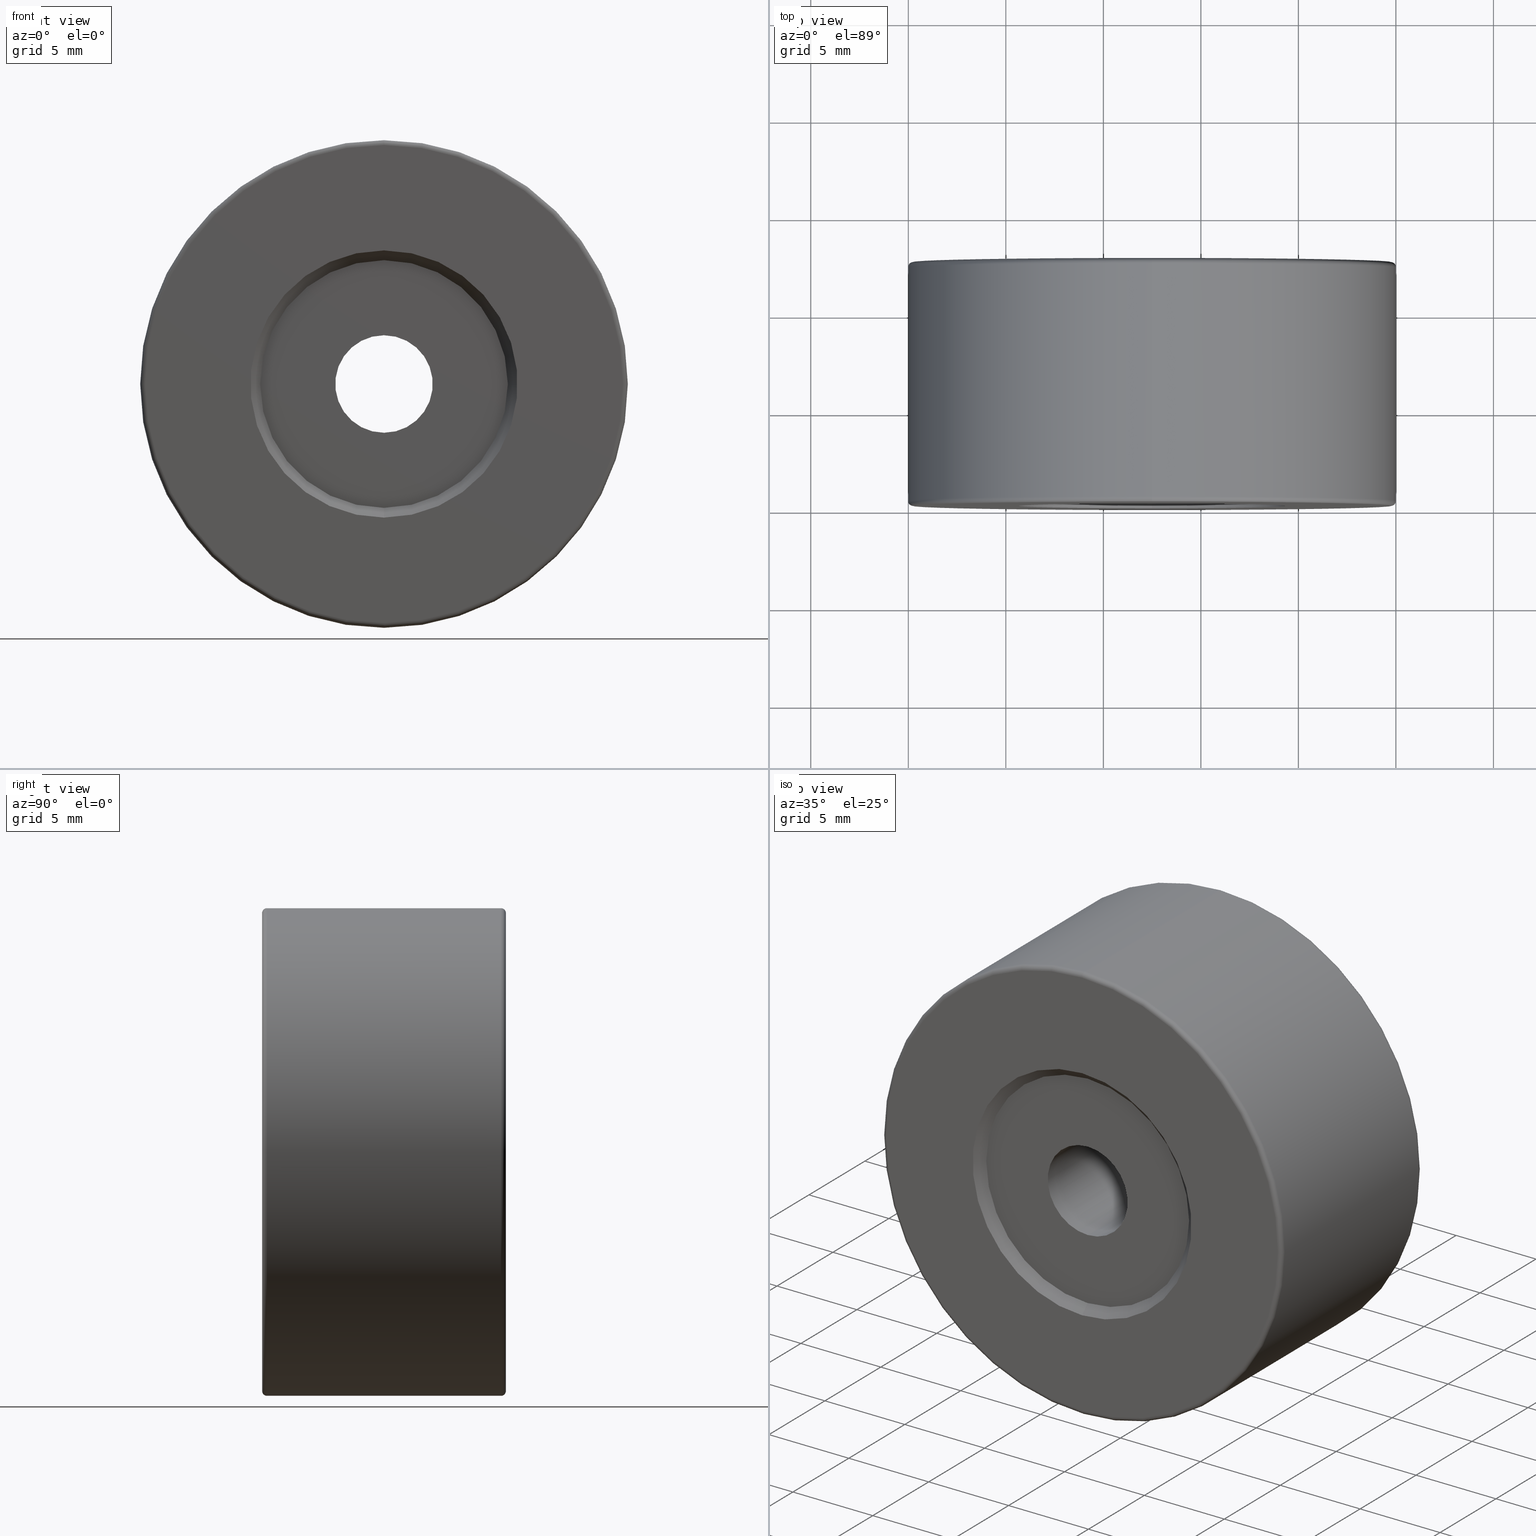
[diagram: canonical four-view strip — front | top / right | iso, engineering-drawing reading convention]
A machine part, canonical four-view strip (front | top / right | iso — engineering-drawing reading convention). The complete STEP part file that produces these views, byte-faithful:
ISO-10303-21;
HEADER;
FILE_DESCRIPTION (( 'STEP AP203' ),
    '1' );
FILE_NAME ('1.4.2.20_ZGH-25-12.5.STEP',
    '2022-04-14T00:07:34',
    ( '' ),
    ( '' ),
    'SwSTEP 2.0',
    'SolidWorks 2021',
    '' );
FILE_SCHEMA (( 'CONFIG_CONTROL_DESIGN' ));
ENDSEC;

DATA;
#1 = AXIS2_PLACEMENT_3D ( 'NONE', #95, #105, #456 ) ;
#2 = AXIS2_PLACEMENT_3D ( 'NONE', #569, #575, #212 ) ;
#3 = DIRECTION ( 'NONE',  ( -0.0000000000000000000, -1.000000000000000000, -0.0000000000000000000 ) ) ;
#4 = ORIENTED_EDGE ( 'NONE', *, *, #213, .T. ) ;
#5 = EDGE_CURVE ( 'NONE', #24, #240, #545, .T. ) ;
#6 = DIRECTION ( 'NONE',  ( -0.0000000000000000000, -1.000000000000000000, -0.0000000000000000000 ) ) ;
#7 = CARTESIAN_POINT ( 'NONE',  ( -22.50520183104453409, 7.148252184769388506, 43.64999999999999858 ) ) ;
#8 = APPROVAL_PERSON_ORGANIZATION ( #32, #435, #218 ) ;
#9 = FACE_OUTER_BOUND ( 'NONE', #497, .T. ) ;
#10 = LOCAL_TIME ( 8, 7, 34.00000000000000000, #392 ) ;
#11 = CARTESIAN_POINT ( 'NONE',  ( -22.50520183104453409, 7.148252184769377848, 50.00000000000000000 ) ) ;
#12 = CONICAL_SURFACE ( 'NONE', #77, 6.850000000000002309, 0.7853981633974491672 ) ;
#13 = EDGE_CURVE ( 'NONE', #424, #337, #422, .T. ) ;
#14 = DIRECTION ( 'NONE',  ( 0.0000000000000000000, 0.0000000000000000000, 1.000000000000000000 ) ) ;
#15 = EDGE_CURVE ( 'NONE', #195, #49, #157, .T. ) ;
#16 = CARTESIAN_POINT ( 'NONE',  ( -22.50520183104453409, -4.351747815230611494, 50.00000000000000000 ) ) ;
#17 = DIRECTION ( 'NONE',  ( 0.0000000000000000000, -0.0000000000000000000, 1.000000000000000000 ) ) ;
#18 = CC_DESIGN_PERSON_AND_ORGANIZATION_ASSIGNMENT ( #299, #172, ( #102 ) ) ;
#19 = FACE_OUTER_BOUND ( 'NONE', #245, .T. ) ;
#20 = CARTESIAN_POINT ( 'NONE',  ( 0.0000000000000000000, 0.0000000000000000000, 0.0000000000000000000 ) ) ;
#21 = ORIENTED_EDGE ( 'NONE', *, *, #31, .F. ) ;
#22 =( LENGTH_UNIT ( ) NAMED_UNIT ( * ) SI_UNIT ( .MILLI., .METRE. ) );
#23 = VERTEX_POINT ( 'NONE', #7 ) ;
#24 = VERTEX_POINT ( 'NONE', #537 ) ;
#25 = DIRECTION ( 'NONE',  ( 0.0000000000000000000, 0.0000000000000000000, 1.000000000000000000 ) ) ;
#26 = ORIENTED_EDGE ( 'NONE', *, *, #414, .F. ) ;
#27 = ORIENTED_EDGE ( 'NONE', *, *, #78, .T. ) ;
#28 = DIRECTION ( 'NONE',  ( 0.0000000000000000000, 0.0000000000000000000, -1.000000000000000000 ) ) ;
#29 = EDGE_LOOP ( 'NONE', ( #151, #294, #325, #26 ) ) ;
#30 = AXIS2_PLACEMENT_3D ( 'NONE', #469, #426, #376 ) ;
#31 = EDGE_CURVE ( 'NONE', #296, #424, #187, .T. ) ;
#32 = PERSON_AND_ORGANIZATION ( #271, #254 ) ;
#33 = ORIENTED_EDGE ( 'NONE', *, *, #97, .T. ) ;
#34 = DIRECTION ( 'NONE',  ( 0.0000000000000000000, 0.0000000000000000000, 1.000000000000000000 ) ) ;
#35 = ORIENTED_EDGE ( 'NONE', *, *, #159, .F. ) ;
#36 = PERSON_AND_ORGANIZATION_ROLE ( 'design_supplier' ) ;
#37 = AXIS2_PLACEMENT_3D ( 'NONE', #103, #460, #63 ) ;
#38 = COORDINATED_UNIVERSAL_TIME_OFFSET ( 8, 0, .AHEAD. ) ;
#39 = CARTESIAN_POINT ( 'NONE',  ( -22.50520183104453409, -4.851747815230612382, 56.85000000000000142 ) ) ;
#40 = EDGE_CURVE ( 'NONE', #120, #565, #305, .T. ) ;
#41 = DIRECTION ( 'NONE',  ( 0.0000000000000000000, 0.0000000000000000000, 1.000000000000000000 ) ) ;
#42 = VECTOR ( 'NONE', #3, 1000.000000000000000 ) ;
#43 = DIRECTION ( 'NONE',  ( -0.0000000000000000000, -1.000000000000000000, -0.0000000000000000000 ) ) ;
#44 = CARTESIAN_POINT ( 'NONE',  ( -22.50520183104453409, 2.658983710942815382, 50.00000000000000000 ) ) ;
#45 = CARTESIAN_POINT ( 'NONE',  ( -22.50520183104453409, 7.648252184769388506, 50.00000000000000000 ) ) ;
#46 = CARTESIAN_POINT ( 'NONE',  ( -22.50520183104453409, 7.148252184769388506, 48.35000000000000142 ) ) ;
#47 = CARTESIAN_POINT ( 'NONE',  ( -22.50520183104453409, 7.648252184769388506, 51.64999999999999858 ) ) ;
#48 = CARTESIAN_POINT ( 'NONE',  ( -22.50520183104453409, -4.851747815230612382, 43.14999999999999858 ) ) ;
#49 = VERTEX_POINT ( 'NONE', #356 ) ;
#50 = DIRECTION ( 'NONE',  ( 0.0000000000000000000, 0.0000000000000000000, 1.000000000000000000 ) ) ;
#51 = AXIS2_PLACEMENT_3D ( 'NONE', #94, #544, #185 ) ;
#52 = CIRCLE ( 'NONE', #455, 6.350000000000001421 ) ;
#53 = DIRECTION ( 'NONE',  ( 0.0000000000000000000, 0.0000000000000000000, 1.000000000000000000 ) ) ;
#54 = CIRCLE ( 'NONE', #178, 12.24999999999999645 ) ;
#55 = LINE ( 'NONE', #234, #504 ) ;
#56 = AXIS2_PLACEMENT_3D ( 'NONE', #135, #263, #50 ) ;
#57 = ADVANCED_FACE ( 'NONE', ( #450 ), #12, .F. ) ;
#58 = CC_DESIGN_PERSON_AND_ORGANIZATION_ASSIGNMENT ( #524, #36, ( #217 ) ) ;
#59 = CARTESIAN_POINT ( 'NONE',  ( -22.50520183104453409, -4.351747815230611494, 52.50000000000000000 ) ) ;
#60 = DIRECTION ( 'NONE',  ( 0.0000000000000000000, 1.000000000000000000, 0.0000000000000000000 ) ) ;
#61 = EDGE_LOOP ( 'NONE', ( #203, #289, #198, #118 ) ) ;
#62 = TOROIDAL_SURFACE ( 'NONE', #470, 12.25000000000000000, 0.2500000000000000000 ) ;
#63 = DIRECTION ( 'NONE',  ( 0.0000000000000000000, 0.0000000000000000000, 1.000000000000000000 ) ) ;
#64 = CARTESIAN_POINT ( 'NONE',  ( -22.50520183104453409, -4.601747815230612382, 50.00000000000000000 ) ) ;
#65 = AXIS2_PLACEMENT_3D ( 'NONE', #207, #380, #554 ) ;
#66 = VERTEX_POINT ( 'NONE', #138 ) ;
#67 = OPEN_SHELL ( 'NONE', ( #57, #96, #515, #226, #205, #483, #566, #402, #219, #432, #502, #180, #235, #112, #578, #523, #428, #279 ) ) ;
#68 = ORIENTED_EDGE ( 'NONE', *, *, #273, .T. ) ;
#69 = MECHANICAL_CONTEXT ( 'NONE', #409, 'mechanical' ) ;
#70 = EDGE_LOOP ( 'NONE', ( #467, #360, #560, #108 ) ) ;
#71 = EDGE_LOOP ( 'NONE', ( #283, #68, #215, #209 ) ) ;
#72 = DIRECTION ( 'NONE',  ( -0.0000000000000000000, -1.000000000000000000, -0.0000000000000000000 ) ) ;
#73 = EDGE_CURVE ( 'NONE', #290, #437, #412, .T. ) ;
#74 = EDGE_LOOP ( 'NONE', ( #4, #496 ) ) ;
#75 = ORIENTED_EDGE ( 'NONE', *, *, #413, .F. ) ;
#76 = AXIS2_PLACEMENT_3D ( 'NONE', #516, #72, #106 ) ;
#77 = AXIS2_PLACEMENT_3D ( 'NONE', #227, #229, #181 ) ;
#78 = EDGE_CURVE ( 'NONE', #240, #437, #313, .T. ) ;
#79 = PERSON_AND_ORGANIZATION_ROLE ( 'creator' ) ;
#80 = ORIENTED_EDGE ( 'NONE', *, *, #445, .T. ) ;
#81 = APPROVAL_ROLE ( '' ) ;
#82 = TOROIDAL_SURFACE ( 'NONE', #127, 12.25000000000000000, 0.2500000000000000000 ) ;
#83 = CALENDAR_DATE ( 2022, 14, 4 ) ;
#84 = LINE ( 'NONE', #458, #439 ) ;
#85 = DIRECTION ( 'NONE',  ( 0.0000000000000000000, 0.0000000000000000000, -1.000000000000000000 ) ) ;
#86 = DIRECTION ( 'NONE',  ( -0.0000000000000000000, -1.000000000000000000, -0.0000000000000000000 ) ) ;
#87 = EDGE_CURVE ( 'NONE', #66, #375, #317, .T. ) ;
#88 = DIRECTION ( 'NONE',  ( 0.0000000000000000000, 0.0000000000000000000, 1.000000000000000000 ) ) ;
#89 = LINE ( 'NONE', #48, #489 ) ;
#90 = CARTESIAN_POINT ( 'NONE',  ( -22.50520183104453409, -4.601747815230612382, 37.75000000000000711 ) ) ;
#91 = APPROVAL_PERSON_ORGANIZATION ( #160, #517, #482 ) ;
#92 = DIRECTION ( 'NONE',  ( -0.0000000000000000000, -1.000000000000000000, -0.0000000000000000000 ) ) ;
#93 = DIRECTION ( 'NONE',  ( 1.000000000000000000, -0.0000000000000000000, 1.224646799147353207E-16 ) ) ;
#94 = CARTESIAN_POINT ( 'NONE',  ( -22.50520183104453409, -4.851747815230612382, 50.00000000000000000 ) ) ;
#95 = CARTESIAN_POINT ( 'NONE',  ( -22.50520183104453409, 7.648252184769388506, 50.00000000000000000 ) ) ;
#96 = ADVANCED_FACE ( 'NONE', ( #531 ), #307, .F. ) ;
#97 = EDGE_CURVE ( 'NONE', #436, #23, #248, .T. ) ;
#98 = DIRECTION ( 'NONE',  ( -1.000000000000000000, 0.0000000000000000000, 0.0000000000000000000 ) ) ;
#99 = AXIS2_PLACEMENT_3D ( 'NONE', #485, #177, #85 ) ;
#100 = CYLINDRICAL_SURFACE ( 'NONE', #76, 2.499999999999995115 ) ;
#101 = CIRCLE ( 'NONE', #423, 1.649999999999998579 ) ;
#102 = PRODUCT ( '1.4.2.20_ZGH-25-12.5', '1.4.2.20_ZGH-25-12.5', '', ( #69 ) ) ;
#103 = CARTESIAN_POINT ( 'NONE',  ( -22.50520183104453409, -4.351747815230611494, 50.00000000000000000 ) ) ;
#104 = CARTESIAN_POINT ( 'NONE',  ( -22.50520183104453409, 7.648252184769388506, 48.35000000000000142 ) ) ;
#105 = DIRECTION ( 'NONE',  ( -0.0000000000000000000, 1.000000000000000000, -0.0000000000000000000 ) ) ;
#106 = DIRECTION ( 'NONE',  ( 0.0000000000000000000, 0.0000000000000000000, -1.000000000000000000 ) ) ;
#107 = ORIENTED_EDGE ( 'NONE', *, *, #73, .F. ) ;
#108 = ORIENTED_EDGE ( 'NONE', *, *, #548, .T. ) ;
#109 = LOCAL_TIME ( 8, 7, 34.00000000000000000, #256 ) ;
#110 = ORIENTED_EDGE ( 'NONE', *, *, #445, .F. ) ;
#111 = ORIENTED_EDGE ( 'NONE', *, *, #191, .F. ) ;
#112 = ADVANCED_FACE ( 'NONE', ( #216 ), #434, .T. ) ;
#113 = CARTESIAN_POINT ( 'NONE',  ( -22.50520183104453409, -4.851747815230612382, 50.00000000000000000 ) ) ;
#114 = VERTEX_POINT ( 'NONE', #352 ) ;
#115 = CARTESIAN_POINT ( 'NONE',  ( -22.50520183104453409, 7.398252184769388506, 50.00000000000000000 ) ) ;
#116 = CALENDAR_DATE ( 2022, 14, 4 ) ;
#117 = EDGE_CURVE ( 'NONE', #23, #436, #239, .T. ) ;
#118 = ORIENTED_EDGE ( 'NONE', *, *, #224, .F. ) ;
#119 = CC_DESIGN_PERSON_AND_ORGANIZATION_ASSIGNMENT ( #347, #479, ( #388 ) ) ;
#120 = VERTEX_POINT ( 'NONE', #39 ) ;
#121 = DATE_AND_TIME ( #253, #493 ) ;
#122 = FACE_OUTER_BOUND ( 'NONE', #137, .T. ) ;
#123 = AXIS2_PLACEMENT_3D ( 'NONE', #225, #318, #498 ) ;
#124 = APPROVAL_STATUS ( 'not_yet_approved' ) ;
#125 = CYLINDRICAL_SURFACE ( 'NONE', #478, 12.49999999999999645 ) ;
#126 = DIRECTION ( 'NONE',  ( 0.0000000000000000000, 0.0000000000000000000, 1.000000000000000000 ) ) ;
#127 = AXIS2_PLACEMENT_3D ( 'NONE', #385, #60, #149 ) ;
#128 = CIRCLE ( 'NONE', #208, 12.24999999999999645 ) ;
#129 = EDGE_CURVE ( 'NONE', #49, #195, #128, .T. ) ;
#130 = CARTESIAN_POINT ( 'NONE',  ( -22.50520183104453409, -4.851747815230612382, 62.25000000000000000 ) ) ;
#131 = CARTESIAN_POINT ( 'NONE',  ( -22.50520183104453409, 7.148252184769388506, 50.00000000000000000 ) ) ;
#132 = SHELL_BASED_SURFACE_MODEL ( 'NONE', ( #67 ) );
#133 = CARTESIAN_POINT ( 'NONE',  ( -22.50520183104453409, 7.648252184769388506, 62.50000000000000000 ) ) ;
#134 = VECTOR ( 'NONE', #266, 1000.000000000000000 ) ;
#135 = CARTESIAN_POINT ( 'NONE',  ( -22.50520183104453409, 7.148252184769388506, 50.00000000000000000 ) ) ;
#136 = FACE_OUTER_BOUND ( 'NONE', #70, .T. ) ;
#137 = EDGE_LOOP ( 'NONE', ( #242, #162, #389, #463 ) ) ;
#138 = CARTESIAN_POINT ( 'NONE',  ( -22.50520183104453409, -4.351747815230611494, 47.50000000000000711 ) ) ;
#139 = MANIFOLD_SURFACE_SHAPE_REPRESENTATION ( '1.4.2.20_ZGH-25-12.5', ( #132, #562 ), #233 ) ;
#140 = AXIS2_PLACEMENT_3D ( 'NONE', #90, #93, #223 ) ;
#141 = CARTESIAN_POINT ( 'NONE',  ( -22.50520183104453409, 7.148252184769388506, 50.00000000000000000 ) ) ;
#142 = CARTESIAN_POINT ( 'NONE',  ( -22.50520183104453409, 7.398252184769388506, 37.50000000000000711 ) ) ;
#143 = FACE_BOUND ( 'NONE', #386, .T. ) ;
#144 = FACE_OUTER_BOUND ( 'NONE', #158, .T. ) ;
#145 = ORIENTED_EDGE ( 'NONE', *, *, #73, .T. ) ;
#146 = CARTESIAN_POINT ( 'NONE',  ( -22.50520183104453409, 7.398252184769388506, 50.00000000000000000 ) ) ;
#147 = TOROIDAL_SURFACE ( 'NONE', #350, 12.25000000000000000, 0.2500000000000000000 ) ;
#148 = DIRECTION ( 'NONE',  ( 0.0000000000000000000, 1.000000000000000000, 0.0000000000000000000 ) ) ;
#149 = DIRECTION ( 'NONE',  ( 0.0000000000000000000, 0.0000000000000000000, 1.000000000000000000 ) ) ;
#150 = ORIENTED_EDGE ( 'NONE', *, *, #576, .F. ) ;
#151 = ORIENTED_EDGE ( 'NONE', *, *, #117, .F. ) ;
#152 = ORIENTED_EDGE ( 'NONE', *, *, #5, .T. ) ;
#153 = ORIENTED_EDGE ( 'NONE', *, *, #224, .T. ) ;
#154 = CIRCLE ( 'NONE', #457, 12.49999999999999645 ) ;
#155 = DIRECTION ( 'NONE',  ( 0.0000000000000000000, 0.0000000000000000000, 1.000000000000000000 ) ) ;
#156 = VERTEX_POINT ( 'NONE', #394 ) ;
#157 = CIRCLE ( 'NONE', #533, 12.24999999999999645 ) ;
#158 = EDGE_LOOP ( 'NONE', ( #377, #568 ) ) ;
#159 = EDGE_CURVE ( 'NONE', #296, #156, #505, .T. ) ;
#160 = PERSON_AND_ORGANIZATION ( #271, #254 ) ;
#161 = CC_DESIGN_DATE_AND_TIME_ASSIGNMENT ( #398, #214, ( #499 ) ) ;
#162 = ORIENTED_EDGE ( 'NONE', *, *, #303, .F. ) ;
#163 = DIRECTION ( 'NONE',  ( 0.0000000000000000000, 1.000000000000000000, 0.0000000000000000000 ) ) ;
#164 = AXIS2_PLACEMENT_3D ( 'NONE', #264, #86, #179 ) ;
#165 = ORIENTED_EDGE ( 'NONE', *, *, #87, .T. ) ;
#166 = UNCERTAINTY_MEASURE_WITH_UNIT (LENGTH_MEASURE( 1.000000000000000082E-05 ), #22, 'distance_accuracy_value', 'NONE');
#167 = APPROVAL_STATUS ( 'not_yet_approved' ) ;
#168 = CONICAL_SURFACE ( 'NONE', #246, 6.350000000000001421, 0.7853981633974473908 ) ;
#169 = CARTESIAN_POINT ( 'NONE',  ( -22.50520183104453409, -4.601747815230612382, 50.00000000000000000 ) ) ;
#170 = CC_DESIGN_APPROVAL ( #490, ( #217 ) ) ;
#171 = AXIS2_PLACEMENT_3D ( 'NONE', #522, #295, #309 ) ;
#172 = PERSON_AND_ORGANIZATION_ROLE ( 'design_owner' ) ;
#173 = CARTESIAN_POINT ( 'NONE',  ( -22.50520183104453409, 7.148252184769388506, 50.00000000000000000 ) ) ;
#174 = DIRECTION ( 'NONE',  ( 0.0000000000000000000, 0.0000000000000000000, -1.000000000000000000 ) ) ;
#175 = EDGE_CURVE ( 'NONE', #114, #446, #275, .T. ) ;
#176 = CARTESIAN_POINT ( 'NONE',  ( -22.50520183104453409, 7.648252184769388506, 50.00000000000000000 ) ) ;
#177 = DIRECTION ( 'NONE',  ( -0.0000000000000000000, -1.000000000000000000, -0.0000000000000000000 ) ) ;
#178 = AXIS2_PLACEMENT_3D ( 'NONE', #547, #320, #183 ) ;
#179 = DIRECTION ( 'NONE',  ( 0.0000000000000000000, 0.0000000000000000000, -1.000000000000000000 ) ) ;
#180 = ADVANCED_FACE ( 'NONE', ( #122 ), #147, .T. ) ;
#181 = DIRECTION ( 'NONE',  ( 0.0000000000000000000, 0.0000000000000000000, -1.000000000000000000 ) ) ;
#182 = CARTESIAN_POINT ( 'NONE',  ( -22.50520183104453409, -4.851747815230612382, 50.00000000000000000 ) ) ;
#183 = DIRECTION ( 'NONE',  ( 0.0000000000000000000, 0.0000000000000000000, 1.000000000000000000 ) ) ;
#184 = PRODUCT_DEFINITION_SHAPE ( 'NONE', 'NONE',  #388 ) ;
#185 = DIRECTION ( 'NONE',  ( 0.0000000000000000000, 0.0000000000000000000, -1.000000000000000000 ) ) ;
#186 = CIRCLE ( 'NONE', #395, 12.49999999999999645 ) ;
#187 = CIRCLE ( 'NONE', #286, 12.24999999999999645 ) ;
#188 = DIRECTION ( 'NONE',  ( 0.0000000000000000000, 0.0000000000000000000, 1.000000000000000000 ) ) ;
#189 = CARTESIAN_POINT ( 'NONE',  ( -22.50520183104453409, -4.851747815230612382, 37.75000000000000711 ) ) ;
#190 = EDGE_LOOP ( 'NONE', ( #80, #381, #476, #555 ) ) ;
#191 = EDGE_CURVE ( 'NONE', #375, #66, #572, .T. ) ;
#192 = DIRECTION ( 'NONE',  ( 0.0000000000000000000, 0.0000000000000000000, 1.000000000000000000 ) ) ;
#193 = FACE_OUTER_BOUND ( 'NONE', #557, .T. ) ;
#194 = DIRECTION ( 'NONE',  ( 0.0000000000000000000, 0.0000000000000000000, 1.000000000000000000 ) ) ;
#195 = VERTEX_POINT ( 'NONE', #345 ) ;
#196 = PLANE ( 'NONE',  #65 ) ;
#197 = EDGE_LOOP ( 'NONE', ( #521, #202, #145, #241 ) ) ;
#198 = ORIENTED_EDGE ( 'NONE', *, *, #191, .T. ) ;
#199 = CIRCLE ( 'NONE', #269, 1.649999999999998579 ) ;
#200 = CIRCLE ( 'NONE', #277, 6.850000000000002309 ) ;
#201 = CARTESIAN_POINT ( 'NONE',  ( -22.50520183104453409, -4.601747815230612382, 50.00000000000000000 ) ) ;
#202 = ORIENTED_EDGE ( 'NONE', *, *, #536, .T. ) ;
#203 = ORIENTED_EDGE ( 'NONE', *, *, #259, .F. ) ;
#204 = EDGE_CURVE ( 'NONE', #487, #49, #322, .T. ) ;
#205 = ADVANCED_FACE ( 'NONE', ( #441 ), #62, .T. ) ;
#206 = VECTOR ( 'NONE', #552, 1000.000000000000000 ) ;
#207 = CARTESIAN_POINT ( 'NONE',  ( -22.50520183104453409, 7.648252184769388506, 50.00000000000000000 ) ) ;
#208 = AXIS2_PLACEMENT_3D ( 'NONE', #390, #480, #220 ) ;
#209 = ORIENTED_EDGE ( 'NONE', *, *, #367, .F. ) ;
#210 = DIRECTION ( 'NONE',  ( 0.0000000000000000000, 0.0000000000000000000, -1.000000000000000000 ) ) ;
#211 = ORIENTED_EDGE ( 'NONE', *, *, #260, .T. ) ;
#212 = DIRECTION ( 'NONE',  ( 0.0000000000000000000, 0.0000000000000000000, 1.000000000000000000 ) ) ;
#213 = EDGE_CURVE ( 'NONE', #446, #114, #540, .T. ) ;
#214 = DATE_TIME_ROLE ( 'classification_date' ) ;
#215 = ORIENTED_EDGE ( 'NONE', *, *, #535, .T. ) ;
#216 = FACE_OUTER_BOUND ( 'NONE', #420, .T. ) ;
#217 = PRODUCT_DEFINITION_FORMATION_WITH_SPECIFIED_SOURCE ( '�κ�', '', #102, .NOT_KNOWN. ) ;
#218 = APPROVAL_ROLE ( '' ) ;
#219 = ADVANCED_FACE ( 'NONE', ( #541, #302 ), #577, .T. ) ;
#220 = DIRECTION ( 'NONE',  ( 0.0000000000000000000, 0.0000000000000000000, 1.000000000000000000 ) ) ;
#221 = PERSON_AND_ORGANIZATION_ROLE ( 'classification_officer' ) ;
#222 = LINE ( 'NONE', #407, #231 ) ;
#223 = DIRECTION ( 'NONE',  ( 0.0000000000000000000, 0.0000000000000000000, -1.000000000000000000 ) ) ;
#224 = EDGE_CURVE ( 'NONE', #250, #66, #538, .T. ) ;
#225 = CARTESIAN_POINT ( 'NONE',  ( -22.50520183104453409, 7.398252184769388506, 50.00000000000000000 ) ) ;
#226 = ADVANCED_FACE ( 'NONE', ( #363 ), #312, .T. ) ;
#227 = CARTESIAN_POINT ( 'NONE',  ( -22.50520183104453409, -4.851747815230612382, 50.00000000000000000 ) ) ;
#228 = DIRECTION ( 'NONE',  ( -0.0000000000000000000, -1.000000000000000000, -0.0000000000000000000 ) ) ;
#229 = DIRECTION ( 'NONE',  ( -0.0000000000000000000, -1.000000000000000000, -0.0000000000000000000 ) ) ;
#230 = DIRECTION ( 'NONE',  ( 0.0000000000000000000, 0.0000000000000000000, -1.000000000000000000 ) ) ;
#231 = VECTOR ( 'NONE', #444, 1000.000000000000000 ) ;
#232 = DIRECTION ( 'NONE',  ( 0.0000000000000000000, -0.7071067811865469066, -0.7071067811865482389 ) ) ;
#233 =( GEOMETRIC_REPRESENTATION_CONTEXT ( 3 ) GLOBAL_UNCERTAINTY_ASSIGNED_CONTEXT ( ( #166 ) ) GLOBAL_UNIT_ASSIGNED_CONTEXT ( ( #22, #374, #459 ) ) REPRESENTATION_CONTEXT ( 'NONE', 'WORKASPACE' ) );
#234 = CARTESIAN_POINT ( 'NONE',  ( -22.50520183104453409, 7.148252184769377848, 56.35000000000000142 ) ) ;
#235 = ADVANCED_FACE ( 'NONE', ( #136 ), #125, .T. ) ;
#236 = DIRECTION ( 'NONE',  ( 0.0000000000000000000, 0.0000000000000000000, 1.000000000000000000 ) ) ;
#237 = CARTESIAN_POINT ( 'NONE',  ( -22.50520183104453409, 7.648252184769388506, 56.85000000000000853 ) ) ;
#238 = ORIENTED_EDGE ( 'NONE', *, *, #342, .F. ) ;
#239 = CIRCLE ( 'NONE', #384, 6.350000000000001421 ) ;
#240 = VERTEX_POINT ( 'NONE', #530 ) ;
#241 = ORIENTED_EDGE ( 'NONE', *, *, #78, .F. ) ;
#242 = ORIENTED_EDGE ( 'NONE', *, *, #204, .F. ) ;
#243 = ORIENTED_EDGE ( 'NONE', *, *, #13, .F. ) ;
#244 = DIRECTION ( 'NONE',  ( -0.0000000000000000000, -1.000000000000000000, -0.0000000000000000000 ) ) ;
#245 = EDGE_LOOP ( 'NONE', ( #110, #475 ) ) ;
#246 = AXIS2_PLACEMENT_3D ( 'NONE', #11, #366, #188 ) ;
#247 = SHAPE_DEFINITION_REPRESENTATION ( #184, #139 ) ;
#248 = CIRCLE ( 'NONE', #514, 6.350000000000001421 ) ;
#249 = ORIENTED_EDGE ( 'NONE', *, *, #129, .T. ) ;
#250 = VERTEX_POINT ( 'NONE', #534 ) ;
#251 = COORDINATED_UNIVERSAL_TIME_OFFSET ( 8, 0, .AHEAD. ) ;
#252 = DIRECTION ( 'NONE',  ( 0.0000000000000000000, 1.000000000000000000, 0.0000000000000000000 ) ) ;
#253 = CALENDAR_DATE ( 2022, 14, 4 ) ;
#254 = ORGANIZATION ( 'δָ��', 'δָ��', '' ) ;
#255 = AXIS2_PLACEMENT_3D ( 'NONE', #169, #397, #442 ) ;
#256 = COORDINATED_UNIVERSAL_TIME_OFFSET ( 8, 0, .AHEAD. ) ;
#257 = DIRECTION ( 'NONE',  ( 0.0000000000000000000, 1.000000000000000000, 0.0000000000000000000 ) ) ;
#258 = VERTEX_POINT ( 'NONE', #491 ) ;
#259 = EDGE_CURVE ( 'NONE', #258, #250, #417, .T. ) ;
#260 = EDGE_CURVE ( 'NONE', #429, #565, #89, .T. ) ;
#261 = AXIS2_PLACEMENT_3D ( 'NONE', #141, #361, #494 ) ;
#262 = DIRECTION ( 'NONE',  ( -0.0000000000000000000, -1.000000000000000000, -0.0000000000000000000 ) ) ;
#263 = DIRECTION ( 'NONE',  ( 0.0000000000000000000, 1.000000000000000000, 0.0000000000000000000 ) ) ;
#264 = CARTESIAN_POINT ( 'NONE',  ( -22.50520183104453409, 2.148252184769387618, 50.00000000000000000 ) ) ;
#265 = ORIENTED_EDGE ( 'NONE', *, *, #488, .F. ) ;
#266 = DIRECTION ( 'NONE',  ( -0.0000000000000000000, -1.000000000000000000, -0.0000000000000000000 ) ) ;
#267 = CARTESIAN_POINT ( 'NONE',  ( -22.50520183104453409, -4.851747815230612382, 50.00000000000000000 ) ) ;
#268 = CARTESIAN_POINT ( 'NONE',  ( -22.50520183104453409, 7.648252184769388506, 50.00000000000000000 ) ) ;
#269 = AXIS2_PLACEMENT_3D ( 'NONE', #44, #6, #230 ) ;
#270 = EDGE_LOOP ( 'NONE', ( #379, #464 ) ) ;
#271 = PERSON ( 'δָ��', 'δָ��', 'δָ��', ('δָ��'), ('δָ��'), ('δָ��') ) ;
#272 = DIRECTION ( 'NONE',  ( -0.0000000000000000000, -1.000000000000000000, -0.0000000000000000000 ) ) ;
#273 = EDGE_CURVE ( 'NONE', #393, #156, #447, .T. ) ;
#274 = AXIS2_PLACEMENT_3D ( 'NONE', #368, #98, #14 ) ;
#275 = CIRCLE ( 'NONE', #2, 6.850000000000008527 ) ;
#276 = DIRECTION ( 'NONE',  ( 0.0000000000000000000, -1.000000000000000000, 0.0000000000000000000 ) ) ;
#277 = AXIS2_PLACEMENT_3D ( 'NONE', #182, #410, #53 ) ;
#278 = PLANE ( 'NONE',  #421 ) ;
#279 = ADVANCED_FACE ( 'NONE', ( #9 ), #298, .F. ) ;
#280 = PLANE ( 'NONE',  #338 ) ;
#281 = DIRECTION ( 'NONE',  ( 8.659560562354926695E-17, 0.7071067811865482389, -0.7071067811865469066 ) ) ;
#282 = CYLINDRICAL_SURFACE ( 'NONE', #30, 1.649999999999998579 ) ;
#283 = ORIENTED_EDGE ( 'NONE', *, *, #387, .T. ) ;
#284 = ORIENTED_EDGE ( 'NONE', *, *, #548, .F. ) ;
#285 = CIRCLE ( 'NONE', #37, 6.350000000000001421 ) ;
#286 = AXIS2_PLACEMENT_3D ( 'NONE', #267, #316, #126 ) ;
#287 = DIRECTION ( 'NONE',  ( 1.000000000000000000, 0.0000000000000000000, 0.0000000000000000000 ) ) ;
#288 = EDGE_LOOP ( 'NONE', ( #265, #341, #513, #35 ) ) ;
#289 = ORIENTED_EDGE ( 'NONE', *, *, #293, .T. ) ;
#290 = VERTEX_POINT ( 'NONE', #46 ) ;
#291 = DIRECTION ( 'NONE',  ( 0.0000000000000000000, 0.0000000000000000000, 1.000000000000000000 ) ) ;
#292 = APPROVAL_STATUS ( 'not_yet_approved' ) ;
#293 = EDGE_CURVE ( 'NONE', #258, #375, #222, .T. ) ;
#294 = ORIENTED_EDGE ( 'NONE', *, *, #413, .T. ) ;
#295 = DIRECTION ( 'NONE',  ( 1.000000000000000000, -0.0000000000000000000, 1.224646799147353207E-16 ) ) ;
#296 = VERTEX_POINT ( 'NONE', #130 ) ;
#297 = CALENDAR_DATE ( 2022, 14, 4 ) ;
#298 = CONICAL_SURFACE ( 'NONE', #51, 6.850000000000002309, 0.7853981633974491672 ) ;
#299 = PERSON_AND_ORGANIZATION ( #271, #254 ) ;
#300 = CARTESIAN_POINT ( 'NONE',  ( -22.50520183104453409, 7.148252184769388506, 50.00000000000000000 ) ) ;
#301 = APPLICATION_PROTOCOL_DEFINITION ( 'international standard', 'config_control_design', 1994, #438 ) ;
#302 = FACE_OUTER_BOUND ( 'NONE', #335, .T. ) ;
#303 = EDGE_CURVE ( 'NONE', #393, #487, #378, .T. ) ;
#304 = CIRCLE ( 'NONE', #274, 0.2500000000000002220 ) ;
#305 = CIRCLE ( 'NONE', #396, 6.850000000000002309 ) ;
#306 = CC_DESIGN_PERSON_AND_ORGANIZATION_ASSIGNMENT ( #570, #79, ( #217 ) ) ;
#307 = CYLINDRICAL_SURFACE ( 'NONE', #99, 2.499999999999995115 ) ;
#308 = CARTESIAN_POINT ( 'NONE',  ( -22.50520183104453409, 7.398252184769388506, 50.00000000000000000 ) ) ;
#309 = DIRECTION ( 'NONE',  ( 0.0000000000000000000, 0.0000000000000000000, -1.000000000000000000 ) ) ;
#310 = DIRECTION ( 'NONE',  ( 0.0000000000000000000, 1.000000000000000000, 0.0000000000000000000 ) ) ;
#311 = EDGE_CURVE ( 'NONE', #240, #24, #199, .T. ) ;
#312 = CYLINDRICAL_SURFACE ( 'NONE', #346, 12.49999999999999645 ) ;
#313 = LINE ( 'NONE', #47, #365 ) ;
#314 = DIRECTION ( 'NONE',  ( 0.0000000000000000000, 0.0000000000000000000, 1.000000000000000000 ) ) ;
#315 = VECTOR ( 'NONE', #281, 999.9999999999998863 ) ;
#316 = DIRECTION ( 'NONE',  ( -0.0000000000000000000, -1.000000000000000000, -0.0000000000000000000 ) ) ;
#317 = CIRCLE ( 'NONE', #495, 2.499999999999995115 ) ;
#318 = DIRECTION ( 'NONE',  ( -0.0000000000000000000, -1.000000000000000000, -0.0000000000000000000 ) ) ;
#319 = EDGE_CURVE ( 'NONE', #492, #429, #52, .T. ) ;
#320 = DIRECTION ( 'NONE',  ( -0.0000000000000000000, -1.000000000000000000, -0.0000000000000000000 ) ) ;
#321 = LOCAL_TIME ( 8, 7, 34.00000000000000000, #251 ) ;
#322 = CIRCLE ( 'NONE', #171, 0.2500000000000002220 ) ;
#323 = DIRECTION ( 'NONE',  ( 0.0000000000000000000, 0.0000000000000000000, 1.000000000000000000 ) ) ;
#324 = FACE_BOUND ( 'NONE', #270, .T. ) ;
#325 = ORIENTED_EDGE ( 'NONE', *, *, #213, .F. ) ;
#326 = EDGE_CURVE ( 'NONE', #565, #120, #200, .T. ) ;
#327 = PRODUCT_RELATED_PRODUCT_CATEGORY ( 'detail', '', ( #102 ) ) ;
#328 = DIRECTION ( 'NONE',  ( -0.0000000000000000000, -1.000000000000000000, -0.0000000000000000000 ) ) ;
#329 = DIRECTION ( 'NONE',  ( 0.0000000000000000000, 1.000000000000000000, 0.0000000000000000000 ) ) ;
#330 = CARTESIAN_POINT ( 'NONE',  ( -22.50520183104453409, 7.398252184769388506, 62.50000000000000000 ) ) ;
#331 = DESIGN_CONTEXT ( 'detailed design', #438, 'design' ) ;
#332 = FACE_OUTER_BOUND ( 'NONE', #197, .T. ) ;
#333 = LOCAL_TIME ( 8, 7, 34.00000000000000000, #38 ) ;
#334 = ORIENTED_EDGE ( 'NONE', *, *, #471, .F. ) ;
#335 = EDGE_LOOP ( 'NONE', ( #33, #525 ) ) ;
#336 = ORIENTED_EDGE ( 'NONE', *, *, #159, .T. ) ;
#337 = VERTEX_POINT ( 'NONE', #574 ) ;
#338 = AXIS2_PLACEMENT_3D ( 'NONE', #16, #276, #236 ) ;
#339 = CARTESIAN_POINT ( 'NONE',  ( -22.50520183104453409, 2.148252184769387618, 50.00000000000000000 ) ) ;
#340 = ORIENTED_EDGE ( 'NONE', *, *, #536, .F. ) ;
#341 = ORIENTED_EDGE ( 'NONE', *, *, #13, .T. ) ;
#342 = EDGE_CURVE ( 'NONE', #437, #290, #101, .T. ) ;
#343 = COORDINATED_UNIVERSAL_TIME_OFFSET ( 8, 0, .AHEAD. ) ;
#344 = EDGE_LOOP ( 'NONE', ( #431, #249 ) ) ;
#345 = CARTESIAN_POINT ( 'NONE',  ( -22.50520183104453409, 7.648252184769388506, 62.25000000000000000 ) ) ;
#346 = AXIS2_PLACEMENT_3D ( 'NONE', #176, #262, #451 ) ;
#347 = PERSON_AND_ORGANIZATION ( #271, #254 ) ;
#348 = ORIENTED_EDGE ( 'NONE', *, *, #97, .F. ) ;
#349 = CARTESIAN_POINT ( 'NONE',  ( -22.50520183104453409, -4.601747815230612382, 62.25000000000000000 ) ) ;
#350 = AXIS2_PLACEMENT_3D ( 'NONE', #115, #163, #291 ) ;
#351 = DATE_AND_TIME ( #83, #10 ) ;
#352 = CARTESIAN_POINT ( 'NONE',  ( -22.50520183104453409, 7.648252184769388506, 43.14999999999999147 ) ) ;
#353 = DIRECTION ( 'NONE',  ( 0.0000000000000000000, 0.0000000000000000000, 1.000000000000000000 ) ) ;
#354 = SECURITY_CLASSIFICATION_LEVEL ( 'unclassified' ) ;
#355 = DIRECTION ( 'NONE',  ( 0.0000000000000000000, 0.0000000000000000000, 1.000000000000000000 ) ) ;
#356 = CARTESIAN_POINT ( 'NONE',  ( -22.50520183104453409, 7.648252184769388506, 37.75000000000000711 ) ) ;
#357 = DIRECTION ( 'NONE',  ( 0.0000000000000000000, 0.0000000000000000000, -1.000000000000000000 ) ) ;
#358 = CIRCLE ( 'NONE', #364, 2.499999999999995115 ) ;
#359 = EDGE_LOOP ( 'NONE', ( #425, #150, #153, #165 ) ) ;
#360 = ORIENTED_EDGE ( 'NONE', *, *, #303, .T. ) ;
#361 = DIRECTION ( 'NONE',  ( 0.0000000000000000000, 1.000000000000000000, 0.0000000000000000000 ) ) ;
#362 = DIRECTION ( 'NONE',  ( 0.0000000000000000000, 1.000000000000000000, 0.0000000000000000000 ) ) ;
#363 = FACE_OUTER_BOUND ( 'NONE', #71, .T. ) ;
#364 = AXIS2_PLACEMENT_3D ( 'NONE', #339, #244, #28 ) ;
#365 = VECTOR ( 'NONE', #448, 1000.000000000000000 ) ;
#366 = DIRECTION ( 'NONE',  ( 0.0000000000000000000, 1.000000000000000000, 0.0000000000000000000 ) ) ;
#367 = EDGE_CURVE ( 'NONE', #487, #337, #84, .T. ) ;
#368 = CARTESIAN_POINT ( 'NONE',  ( -22.50520183104453409, 7.398252184769388506, 62.25000000000000000 ) ) ;
#369 = CC_DESIGN_PERSON_AND_ORGANIZATION_ASSIGNMENT ( #440, #221, ( #499 ) ) ;
#370 = ORIENTED_EDGE ( 'NONE', *, *, #87, .F. ) ;
#371 = CARTESIAN_POINT ( 'NONE',  ( -22.50520183104453409, 7.148252184769388506, 56.35000000000000142 ) ) ;
#372 = FACE_OUTER_BOUND ( 'NONE', #344, .T. ) ;
#373 = LINE ( 'NONE', #553, #481 ) ;
#374 =( NAMED_UNIT ( * ) PLANE_ANGLE_UNIT ( ) SI_UNIT ( $, .RADIAN. ) );
#375 = VERTEX_POINT ( 'NONE', #59 ) ;
#376 = DIRECTION ( 'NONE',  ( 0.0000000000000000000, 0.0000000000000000000, 1.000000000000000000 ) ) ;
#377 = ORIENTED_EDGE ( 'NONE', *, *, #31, .T. ) ;
#378 = CIRCLE ( 'NONE', #123, 12.49999999999999645 ) ;
#379 = ORIENTED_EDGE ( 'NONE', *, *, #326, .T. ) ;
#380 = DIRECTION ( 'NONE',  ( 0.0000000000000000000, 1.000000000000000000, 0.0000000000000000000 ) ) ;
#381 = ORIENTED_EDGE ( 'NONE', *, *, #471, .T. ) ;
#382 = ORIENTED_EDGE ( 'NONE', *, *, #204, .T. ) ;
#383 = EDGE_CURVE ( 'NONE', #393, #195, #304, .T. ) ;
#384 = AXIS2_PLACEMENT_3D ( 'NONE', #300, #252, #34 ) ;
#385 = CARTESIAN_POINT ( 'NONE',  ( -22.50520183104453409, -4.601747815230612382, 50.00000000000000000 ) ) ;
#386 = EDGE_LOOP ( 'NONE', ( #370, #111 ) ) ;
#387 = EDGE_CURVE ( 'NONE', #487, #393, #186, .T. ) ;
#388 = PRODUCT_DEFINITION ( 'δ֪', '', #217, #331 ) ;
#389 = ORIENTED_EDGE ( 'NONE', *, *, #383, .T. ) ;
#390 = CARTESIAN_POINT ( 'NONE',  ( -22.50520183104453409, 7.648252184769388506, 50.00000000000000000 ) ) ;
#391 = AXIS2_PLACEMENT_3D ( 'NONE', #400, #228, #314 ) ;
#392 = COORDINATED_UNIVERSAL_TIME_OFFSET ( 8, 0, .AHEAD. ) ;
#393 = VERTEX_POINT ( 'NONE', #330 ) ;
#394 = CARTESIAN_POINT ( 'NONE',  ( -22.50520183104453409, -4.601747815230612382, 62.50000000000000000 ) ) ;
#395 = AXIS2_PLACEMENT_3D ( 'NONE', #146, #328, #323 ) ;
#396 = AXIS2_PLACEMENT_3D ( 'NONE', #452, #362, #88 ) ;
#397 = DIRECTION ( 'NONE',  ( 0.0000000000000000000, 1.000000000000000000, 0.0000000000000000000 ) ) ;
#398 = DATE_AND_TIME ( #297, #333 ) ;
#399 = DIRECTION ( 'NONE',  ( 0.0000000000000000000, 0.0000000000000000000, 1.000000000000000000 ) ) ;
#400 = CARTESIAN_POINT ( 'NONE',  ( -22.50520183104453409, 7.648252184769388506, 50.00000000000000000 ) ) ;
#401 = CARTESIAN_POINT ( 'NONE',  ( -22.50520183104453409, -4.351747815230611494, 50.00000000000000000 ) ) ;
#402 = ADVANCED_FACE ( 'NONE', ( #193 ), #506, .F. ) ;
#403 = DIRECTION ( 'NONE',  ( -0.0000000000000000000, 1.000000000000000000, -0.0000000000000000000 ) ) ;
#404 = AXIS2_PLACEMENT_3D ( 'NONE', #64, #329, #25 ) ;
#405 = AXIS2_PLACEMENT_3D ( 'NONE', #349, #527, #399 ) ;
#406 = DIRECTION ( 'NONE',  ( 0.0000000000000000000, 0.0000000000000000000, -1.000000000000000000 ) ) ;
#407 = CARTESIAN_POINT ( 'NONE',  ( -22.50520183104453409, -4.851747815230612382, 52.50000000000000000 ) ) ;
#408 = DIRECTION ( 'NONE',  ( 0.0000000000000000000, 0.0000000000000000000, 1.000000000000000000 ) ) ;
#409 = APPLICATION_CONTEXT ( 'configuration controlled 3d designs of mechanical parts and assemblies' ) ;
#410 = DIRECTION ( 'NONE',  ( 0.0000000000000000000, 1.000000000000000000, 0.0000000000000000000 ) ) ;
#411 = FACE_OUTER_BOUND ( 'NONE', #29, .T. ) ;
#412 = CIRCLE ( 'NONE', #56, 1.649999999999998579 ) ;
#413 = EDGE_CURVE ( 'NONE', #23, #114, #501, .T. ) ;
#414 = EDGE_CURVE ( 'NONE', #436, #446, #55, .T. ) ;
#415 = FACE_OUTER_BOUND ( 'NONE', #468, .T. ) ;
#416 = CARTESIAN_POINT ( 'NONE',  ( -22.50520183104453409, 7.148252184769377848, 50.00000000000000000 ) ) ;
#417 = CIRCLE ( 'NONE', #164, 2.499999999999995115 ) ;
#418 = DIRECTION ( 'NONE',  ( 0.0000000000000000000, 1.000000000000000000, 0.0000000000000000000 ) ) ;
#419 = CARTESIAN_POINT ( 'NONE',  ( -22.50520183104453409, 7.148252184769377848, 43.64999999999999858 ) ) ;
#420 = EDGE_LOOP ( 'NONE', ( #243, #21, #336, #284 ) ) ;
#421 = AXIS2_PLACEMENT_3D ( 'NONE', #113, #462, #17 ) ;
#422 = CIRCLE ( 'NONE', #140, 0.2500000000000002220 ) ;
#423 = AXIS2_PLACEMENT_3D ( 'NONE', #173, #257, #484 ) ;
#424 = VERTEX_POINT ( 'NONE', #189 ) ;
#425 = ORIENTED_EDGE ( 'NONE', *, *, #293, .F. ) ;
#426 = DIRECTION ( 'NONE',  ( -0.0000000000000000000, 1.000000000000000000, -0.0000000000000000000 ) ) ;
#427 = ORIENTED_EDGE ( 'NONE', *, *, #383, .F. ) ;
#428 = ADVANCED_FACE ( 'NONE', ( #143, #19 ), #280, .T. ) ;
#429 = VERTEX_POINT ( 'NONE', #500 ) ;
#430 = LINE ( 'NONE', #104, #206 ) ;
#431 = ORIENTED_EDGE ( 'NONE', *, *, #15, .T. ) ;
#432 = ADVANCED_FACE ( 'NONE', ( #415 ), #433, .F. ) ;
#433 = CONICAL_SURFACE ( 'NONE', #571, 6.350000000000001421, 0.7853981633974473908 ) ;
#434 = TOROIDAL_SURFACE ( 'NONE', #255, 12.25000000000000000, 0.2500000000000000000 ) ;
#435 = APPROVAL ( #292, 'δָ��' ) ;
#436 = VERTEX_POINT ( 'NONE', #371 ) ;
#437 = VERTEX_POINT ( 'NONE', #551 ) ;
#438 = APPLICATION_CONTEXT ( 'configuration controlled 3d designs of mechanical parts and assemblies' ) ;
#439 = VECTOR ( 'NONE', #272, 1000.000000000000000 ) ;
#440 = PERSON_AND_ORGANIZATION ( #271, #254 ) ;
#441 = FACE_OUTER_BOUND ( 'NONE', #510, .T. ) ;
#442 = DIRECTION ( 'NONE',  ( 0.0000000000000000000, 0.0000000000000000000, 1.000000000000000000 ) ) ;
#443 = DATE_TIME_ROLE ( 'creation_date' ) ;
#444 = DIRECTION ( 'NONE',  ( -0.0000000000000000000, -1.000000000000000000, -0.0000000000000000000 ) ) ;
#445 = EDGE_CURVE ( 'NONE', #429, #492, #285, .T. ) ;
#446 = VERTEX_POINT ( 'NONE', #237 ) ;
#447 = LINE ( 'NONE', #133, #134 ) ;
#448 = DIRECTION ( 'NONE',  ( -0.0000000000000000000, 1.000000000000000000, -0.0000000000000000000 ) ) ;
#449 = DIRECTION ( 'NONE',  ( 0.0000000000000000000, 1.000000000000000000, 0.0000000000000000000 ) ) ;
#450 = FACE_OUTER_BOUND ( 'NONE', #190, .T. ) ;
#451 = DIRECTION ( 'NONE',  ( 0.0000000000000000000, 0.0000000000000000000, -1.000000000000000000 ) ) ;
#452 = CARTESIAN_POINT ( 'NONE',  ( -22.50520183104453409, -4.851747815230612382, 50.00000000000000000 ) ) ;
#453 = CC_DESIGN_APPROVAL ( #435, ( #499 ) ) ;
#454 = CARTESIAN_POINT ( 'NONE',  ( -22.50520183104453409, -4.351747815230611494, 50.00000000000000000 ) ) ;
#455 = AXIS2_PLACEMENT_3D ( 'NONE', #454, #403, #355 ) ;
#456 = DIRECTION ( 'NONE',  ( 0.0000000000000000000, 0.0000000000000000000, 1.000000000000000000 ) ) ;
#457 = AXIS2_PLACEMENT_3D ( 'NONE', #201, #418, #155 ) ;
#458 = CARTESIAN_POINT ( 'NONE',  ( -22.50520183104453409, 7.648252184769388506, 37.50000000000000711 ) ) ;
#459 =( NAMED_UNIT ( * ) SI_UNIT ( $, .STERADIAN. ) SOLID_ANGLE_UNIT ( ) );
#460 = DIRECTION ( 'NONE',  ( -0.0000000000000000000, 1.000000000000000000, -0.0000000000000000000 ) ) ;
#461 = CARTESIAN_POINT ( 'NONE',  ( -22.50520183104453409, -4.851747815230612382, 43.14999999999999858 ) ) ;
#462 = DIRECTION ( 'NONE',  ( 0.0000000000000000000, 1.000000000000000000, 0.0000000000000000000 ) ) ;
#463 = ORIENTED_EDGE ( 'NONE', *, *, #129, .F. ) ;
#464 = ORIENTED_EDGE ( 'NONE', *, *, #40, .T. ) ;
#465 = CC_DESIGN_APPROVAL ( #517, ( #388 ) ) ;
#466 = AXIS2_PLACEMENT_3D ( 'NONE', #519, #473, #210 ) ;
#467 = ORIENTED_EDGE ( 'NONE', *, *, #273, .F. ) ;
#468 = EDGE_LOOP ( 'NONE', ( #75, #348, #558, #511 ) ) ;
#469 = CARTESIAN_POINT ( 'NONE',  ( -22.50520183104453409, 7.648252184769388506, 50.00000000000000000 ) ) ;
#470 = AXIS2_PLACEMENT_3D ( 'NONE', #308, #449, #41 ) ;
#471 = EDGE_CURVE ( 'NONE', #492, #120, #373, .T. ) ;
#472 = ORIENTED_EDGE ( 'NONE', *, *, #319, .T. ) ;
#473 = DIRECTION ( 'NONE',  ( 0.0000000000000000000, -1.000000000000000000, 0.0000000000000000000 ) ) ;
#474 = CC_DESIGN_DATE_AND_TIME_ASSIGNMENT ( #564, #443, ( #388 ) ) ;
#475 = ORIENTED_EDGE ( 'NONE', *, *, #319, .F. ) ;
#476 = ORIENTED_EDGE ( 'NONE', *, *, #326, .F. ) ;
#477 = CALENDAR_DATE ( 2022, 14, 4 ) ;
#478 = AXIS2_PLACEMENT_3D ( 'NONE', #268, #92, #357 ) ;
#479 = PERSON_AND_ORGANIZATION_ROLE ( 'creator' ) ;
#480 = DIRECTION ( 'NONE',  ( 0.0000000000000000000, 1.000000000000000000, 0.0000000000000000000 ) ) ;
#481 = VECTOR ( 'NONE', #508, 999.9999999999998863 ) ;
#482 = APPROVAL_ROLE ( '' ) ;
#483 = ADVANCED_FACE ( 'NONE', ( #411 ), #168, .F. ) ;
#484 = DIRECTION ( 'NONE',  ( 0.0000000000000000000, 0.0000000000000000000, 1.000000000000000000 ) ) ;
#485 = CARTESIAN_POINT ( 'NONE',  ( -22.50520183104453409, -4.851747815230612382, 50.00000000000000000 ) ) ;
#486 = CARTESIAN_POINT ( 'NONE',  ( -22.50520183104453409, -4.851747815230612382, 47.50000000000000711 ) ) ;
#487 = VERTEX_POINT ( 'NONE', #142 ) ;
#488 = EDGE_CURVE ( 'NONE', #424, #296, #54, .T. ) ;
#489 = VECTOR ( 'NONE', #232, 999.9999999999998863 ) ;
#490 = APPROVAL ( #124, 'δָ��' ) ;
#491 = CARTESIAN_POINT ( 'NONE',  ( -22.50520183104453409, 2.148252184769387618, 52.50000000000000000 ) ) ;
#492 = VERTEX_POINT ( 'NONE', #509 ) ;
#493 = LOCAL_TIME ( 8, 7, 34.00000000000000000, #343 ) ;
#494 = DIRECTION ( 'NONE',  ( 0.0000000000000000000, -0.0000000000000000000, 1.000000000000000000 ) ) ;
#495 = AXIS2_PLACEMENT_3D ( 'NONE', #401, #579, #174 ) ;
#496 = ORIENTED_EDGE ( 'NONE', *, *, #175, .T. ) ;
#497 = EDGE_LOOP ( 'NONE', ( #334, #472, #211, #546 ) ) ;
#498 = DIRECTION ( 'NONE',  ( 0.0000000000000000000, 0.0000000000000000000, 1.000000000000000000 ) ) ;
#499 = SECURITY_CLASSIFICATION ( '', '', #354 ) ;
#500 = CARTESIAN_POINT ( 'NONE',  ( -22.50520183104453409, -4.351747815230611494, 43.64999999999999858 ) ) ;
#501 = LINE ( 'NONE', #419, #315 ) ;
#502 = ADVANCED_FACE ( 'NONE', ( #372, #503 ), #196, .T. ) ;
#503 = FACE_BOUND ( 'NONE', #74, .T. ) ;
#504 = VECTOR ( 'NONE', #549, 999.9999999999998863 ) ;
#505 = CIRCLE ( 'NONE', #405, 0.2500000000000002220 ) ;
#506 = CYLINDRICAL_SURFACE ( 'NONE', #1, 1.649999999999998579 ) ;
#507 = FACE_OUTER_BOUND ( 'NONE', #359, .T. ) ;
#508 = DIRECTION ( 'NONE',  ( 8.659560562354941486E-17, -0.7071067811865469066, 0.7071067811865482389 ) ) ;
#509 = CARTESIAN_POINT ( 'NONE',  ( -22.50520183104453409, -4.351747815230611494, 56.35000000000000142 ) ) ;
#510 = EDGE_LOOP ( 'NONE', ( #561, #382, #512, #427 ) ) ;
#511 = ORIENTED_EDGE ( 'NONE', *, *, #175, .F. ) ;
#512 = ORIENTED_EDGE ( 'NONE', *, *, #15, .F. ) ;
#513 = ORIENTED_EDGE ( 'NONE', *, *, #535, .F. ) ;
#514 = AXIS2_PLACEMENT_3D ( 'NONE', #131, #310, #353 ) ;
#515 = ADVANCED_FACE ( 'NONE', ( #559 ), #82, .T. ) ;
#516 = CARTESIAN_POINT ( 'NONE',  ( -22.50520183104453409, -4.851747815230612382, 50.00000000000000000 ) ) ;
#517 = APPROVAL ( #167, 'δָ��' ) ;
#518 = EDGE_LOOP ( 'NONE', ( #238, #107 ) ) ;
#519 = CARTESIAN_POINT ( 'NONE',  ( -22.50520183104453409, -4.351747815230611494, 50.00000000000000000 ) ) ;
#520 = CC_DESIGN_SECURITY_CLASSIFICATION ( #499, ( #217 ) ) ;
#521 = ORIENTED_EDGE ( 'NONE', *, *, #311, .T. ) ;
#522 = CARTESIAN_POINT ( 'NONE',  ( -22.50520183104453409, 7.398252184769388506, 37.75000000000000711 ) ) ;
#523 = ADVANCED_FACE ( 'NONE', ( #507 ), #100, .F. ) ;
#524 = PERSON_AND_ORGANIZATION ( #271, #254 ) ;
#525 = ORIENTED_EDGE ( 'NONE', *, *, #117, .T. ) ;
#526 = APPROVAL_DATE_TIME ( #351, #490 ) ;
#527 = DIRECTION ( 'NONE',  ( -1.000000000000000000, 0.0000000000000000000, 0.0000000000000000000 ) ) ;
#528 = APPROVAL_DATE_TIME ( #121, #517 ) ;
#529 = DATE_AND_TIME ( #477, #321 ) ;
#530 = CARTESIAN_POINT ( 'NONE',  ( -22.50520183104453409, 2.658983710942815382, 51.64999999999999858 ) ) ;
#531 = FACE_OUTER_BOUND ( 'NONE', #61, .T. ) ;
#532 = CIRCLE ( 'NONE', #404, 12.49999999999999645 ) ;
#533 = AXIS2_PLACEMENT_3D ( 'NONE', #45, #539, #408 ) ;
#534 = CARTESIAN_POINT ( 'NONE',  ( -22.50520183104453409, 2.148252184769387618, 47.50000000000000711 ) ) ;
#535 = EDGE_CURVE ( 'NONE', #156, #337, #154, .T. ) ;
#536 = EDGE_CURVE ( 'NONE', #24, #290, #430, .T. ) ;
#537 = CARTESIAN_POINT ( 'NONE',  ( -22.50520183104453409, 2.658983710942815382, 48.35000000000000142 ) ) ;
#538 = LINE ( 'NONE', #486, #42 ) ;
#539 = DIRECTION ( 'NONE',  ( 0.0000000000000000000, 1.000000000000000000, 0.0000000000000000000 ) ) ;
#540 = CIRCLE ( 'NONE', #391, 6.850000000000008527 ) ;
#541 = FACE_BOUND ( 'NONE', #518, .T. ) ;
#542 = CARTESIAN_POINT ( 'NONE',  ( -22.50520183104453409, 2.658983710942815382, 50.00000000000000000 ) ) ;
#543 = APPROVAL_PERSON_ORGANIZATION ( #567, #490, #81 ) ;
#544 = DIRECTION ( 'NONE',  ( -0.0000000000000000000, -1.000000000000000000, -0.0000000000000000000 ) ) ;
#545 = CIRCLE ( 'NONE', #563, 1.649999999999998579 ) ;
#546 = ORIENTED_EDGE ( 'NONE', *, *, #40, .F. ) ;
#547 = CARTESIAN_POINT ( 'NONE',  ( -22.50520183104453409, -4.851747815230612382, 50.00000000000000000 ) ) ;
#548 = EDGE_CURVE ( 'NONE', #337, #156, #532, .T. ) ;
#549 = DIRECTION ( 'NONE',  ( 0.0000000000000000000, 0.7071067811865482389, 0.7071067811865469066 ) ) ;
#550 = ORIENTED_EDGE ( 'NONE', *, *, #342, .T. ) ;
#551 = CARTESIAN_POINT ( 'NONE',  ( -22.50520183104453409, 7.148252184769388506, 51.64999999999999858 ) ) ;
#552 = DIRECTION ( 'NONE',  ( -0.0000000000000000000, 1.000000000000000000, -0.0000000000000000000 ) ) ;
#553 = CARTESIAN_POINT ( 'NONE',  ( -22.50520183104453409, -4.851747815230612382, 56.85000000000000142 ) ) ;
#554 = DIRECTION ( 'NONE',  ( 0.0000000000000000000, -0.0000000000000000000, 1.000000000000000000 ) ) ;
#555 = ORIENTED_EDGE ( 'NONE', *, *, #260, .F. ) ;
#556 = APPLICATION_PROTOCOL_DEFINITION ( 'international standard', 'config_control_design', 1994, #409 ) ;
#557 = EDGE_LOOP ( 'NONE', ( #340, #152, #27, #550 ) ) ;
#558 = ORIENTED_EDGE ( 'NONE', *, *, #414, .T. ) ;
#559 = FACE_OUTER_BOUND ( 'NONE', #288, .T. ) ;
#560 = ORIENTED_EDGE ( 'NONE', *, *, #367, .T. ) ;
#561 = ORIENTED_EDGE ( 'NONE', *, *, #387, .F. ) ;
#562 = AXIS2_PLACEMENT_3D ( 'NONE', #20, #194, #287 ) ;
#563 = AXIS2_PLACEMENT_3D ( 'NONE', #542, #43, #406 ) ;
#564 = DATE_AND_TIME ( #116, #109 ) ;
#565 = VERTEX_POINT ( 'NONE', #461 ) ;
#566 = ADVANCED_FACE ( 'NONE', ( #332 ), #282, .F. ) ;
#567 = PERSON_AND_ORGANIZATION ( #271, #254 ) ;
#568 = ORIENTED_EDGE ( 'NONE', *, *, #488, .T. ) ;
#569 = CARTESIAN_POINT ( 'NONE',  ( -22.50520183104453409, 7.648252184769388506, 50.00000000000000000 ) ) ;
#570 = PERSON_AND_ORGANIZATION ( #271, #254 ) ;
#571 = AXIS2_PLACEMENT_3D ( 'NONE', #416, #148, #192 ) ;
#572 = CIRCLE ( 'NONE', #466, 2.499999999999995115 ) ;
#573 = APPROVAL_DATE_TIME ( #529, #435 ) ;
#574 = CARTESIAN_POINT ( 'NONE',  ( -22.50520183104453409, -4.601747815230612382, 37.50000000000000711 ) ) ;
#575 = DIRECTION ( 'NONE',  ( -0.0000000000000000000, -1.000000000000000000, -0.0000000000000000000 ) ) ;
#576 = EDGE_CURVE ( 'NONE', #250, #258, #358, .T. ) ;
#577 = PLANE ( 'NONE',  #261 ) ;
#578 = ADVANCED_FACE ( 'NONE', ( #144, #324 ), #278, .F. ) ;
#579 = DIRECTION ( 'NONE',  ( 0.0000000000000000000, -1.000000000000000000, 0.0000000000000000000 ) ) ;
ENDSEC;
END-ISO-10303-21;
